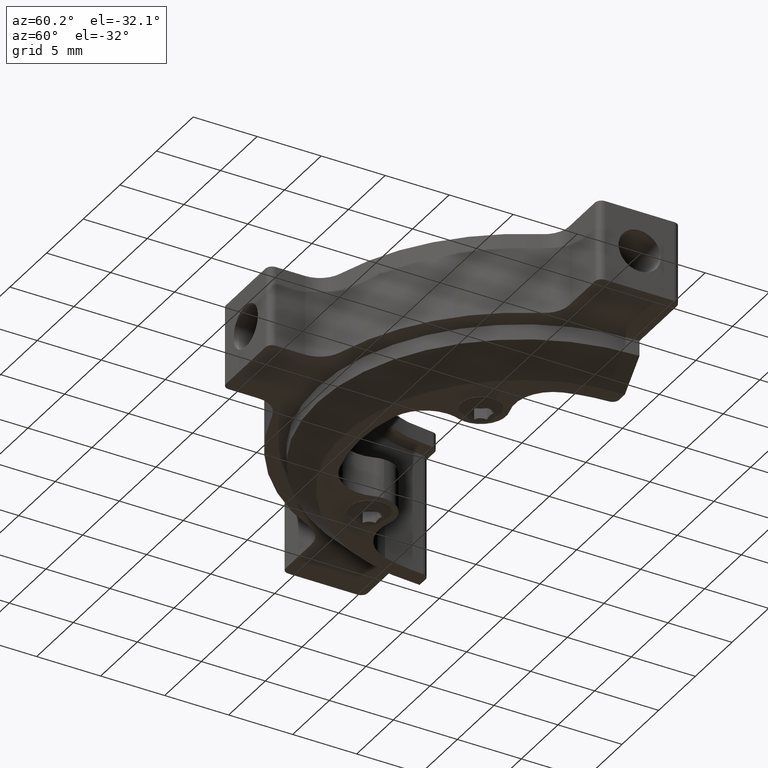
[diagram: clean part render]
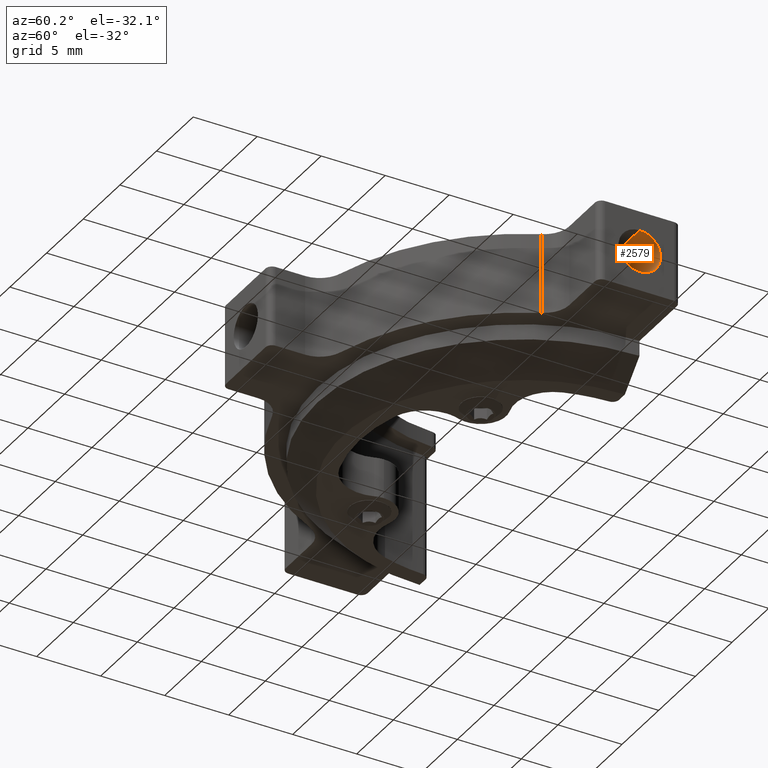
[diagram: same view with one face highlighted and labeled with its STEP entity id]
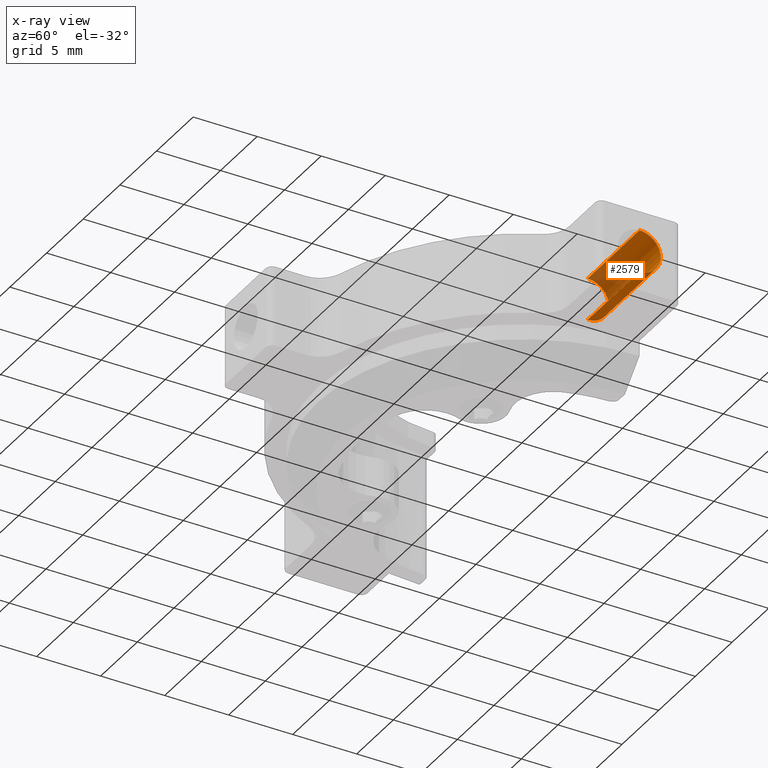
[diagram: x-ray of the same camera — body ghosted, the highlighted face saturated]
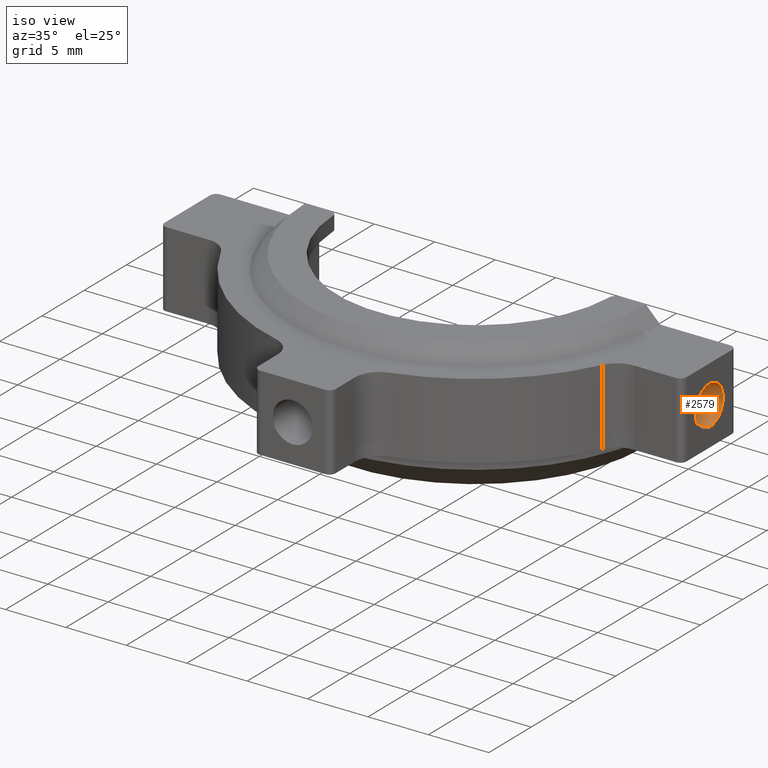
[diagram: same view with one face highlighted and labeled with its STEP entity id]
A machine part, auxiliary view. The second image highlights one B-rep face of the part: STEP entity #2579.
The next image is the same camera in x-ray: the body ghosted, the highlighted face saturated — about 30% of this face is hidden behind the body in this view.
A second angle (iso view) of the same face is appended — the face is thin or edge-on in the first view.
In plain terms, the highlighted cylindrical surface (edge-blend (fillet) strip) has radius 1.65 mm, axis along (1, -0, -0).
Its self-contained STEP definition (entity closure, byte-faithful):
#6 = DIRECTION ( 'NONE',  ( 1.000000000000000000, -0.000000000000000000, -0.000000000000000000 ) ) ;
#20 = EDGE_CURVE ( 'NONE', #2106, #1047, #2725, .T. ) ;
#22 = ORIENTED_EDGE ( 'NONE', *, *, #123, .F. ) ;
#49 = ORIENTED_EDGE ( 'NONE', *, *, #2994, .F. ) ;
#63 = VECTOR ( 'NONE', #1525, 1000.000000000000000 ) ;
#115 = CARTESIAN_POINT ( 'NONE',  ( 12.58352028902644548, 5.788821372047170399, 31.85000000000000497 ) ) ;
#123 = EDGE_CURVE ( 'NONE', #2106, #2132, #1337, .T. ) ;
#179 = DIRECTION ( 'NONE',  ( 0.000000000000000000, 0.000000000000000000, -1.000000000000000000 ) ) ;
#523 = CYLINDRICAL_SURFACE ( 'NONE', #1111, 1.649999999999995248 ) ;
#593 = DIRECTION ( 'NONE',  ( 1.000000000000000000, -0.000000000000000000, -0.000000000000000000 ) ) ;
#602 = CIRCLE ( 'NONE', #1644, 1.649999999999991696 ) ;
#884 = AXIS2_PLACEMENT_3D ( 'NONE', #2354, #2587, #179 ) ;
#933 = EDGE_CURVE ( 'NONE', #1047, #2615, #602, .T. ) ;
#1047 = VERTEX_POINT ( 'NONE', #3091 ) ;
#1048 = CARTESIAN_POINT ( 'NONE',  ( 19.68352028902644335, 5.788821372047170399, 31.84999999999999787 ) ) ;
#1089 = DIRECTION ( 'NONE',  ( 0.000000000000000000, 0.000000000000000000, -1.000000000000000000 ) ) ;
#1111 = AXIS2_PLACEMENT_3D ( 'NONE', #2625, #6, #2660 ) ;
#1256 = ORIENTED_EDGE ( 'NONE', *, *, #933, .T. ) ;
#1337 = CIRCLE ( 'NONE', #884, 1.649999999999998579 ) ;
#1440 = VECTOR ( 'NONE', #593, 1000.000000000000000 ) ;
#1525 = DIRECTION ( 'NONE',  ( 1.000000000000000000, -0.000000000000000000, -0.000000000000000000 ) ) ;
#1644 = AXIS2_PLACEMENT_3D ( 'NONE', #2710, #2727, #1089 ) ;
#2106 = VERTEX_POINT ( 'NONE', #2934 ) ;
#2132 = VERTEX_POINT ( 'NONE', #115 ) ;
#2134 = FACE_OUTER_BOUND ( 'NONE', #2774, .T. ) ;
#2354 = CARTESIAN_POINT ( 'NONE',  ( 12.58352028902644548, 5.788821372047170399, 30.20000000000000284 ) ) ;
#2579 = ADVANCED_FACE ( 'NONE', ( #2134 ), #523, .F. ) ;
#2587 = DIRECTION ( 'NONE',  ( 1.000000000000000000, -0.000000000000000000, -0.000000000000000000 ) ) ;
#2615 = VERTEX_POINT ( 'NONE', #1048 ) ;
#2625 = CARTESIAN_POINT ( 'NONE',  ( 19.68352028902644335, 5.788821372047170399, 30.20000000000000284 ) ) ;
#2660 = DIRECTION ( 'NONE',  ( 0.000000000000000000, 0.000000000000000000, -1.000000000000000000 ) ) ;
#2710 = CARTESIAN_POINT ( 'NONE',  ( 19.68352028902644335, 5.788821372047170399, 30.20000000000000284 ) ) ;
#2725 = LINE ( 'NONE', #2738, #1440 ) ;
#2727 = DIRECTION ( 'NONE',  ( 1.000000000000000000, -0.000000000000000000, -0.000000000000000000 ) ) ;
#2735 = LINE ( 'NONE', #2754, #63 ) ;
#2738 = CARTESIAN_POINT ( 'NONE',  ( 19.68352028902644335, 5.788821372047170399, 28.55000000000000782 ) ) ;
#2754 = CARTESIAN_POINT ( 'NONE',  ( 19.68352028902644335, 5.788821372047170399, 31.84999999999999787 ) ) ;
#2774 = EDGE_LOOP ( 'NONE', ( #49, #22, #2992, #1256 ) ) ;
#2934 = CARTESIAN_POINT ( 'NONE',  ( 12.58352028902644548, 5.788821372047170399, 28.55000000000000426 ) ) ;
#2992 = ORIENTED_EDGE ( 'NONE', *, *, #20, .T. ) ;
#2994 = EDGE_CURVE ( 'NONE', #2132, #2615, #2735, .T. ) ;
#3091 = CARTESIAN_POINT ( 'NONE',  ( 19.68352028902644335, 5.788821372047170399, 28.55000000000001137 ) ) ;